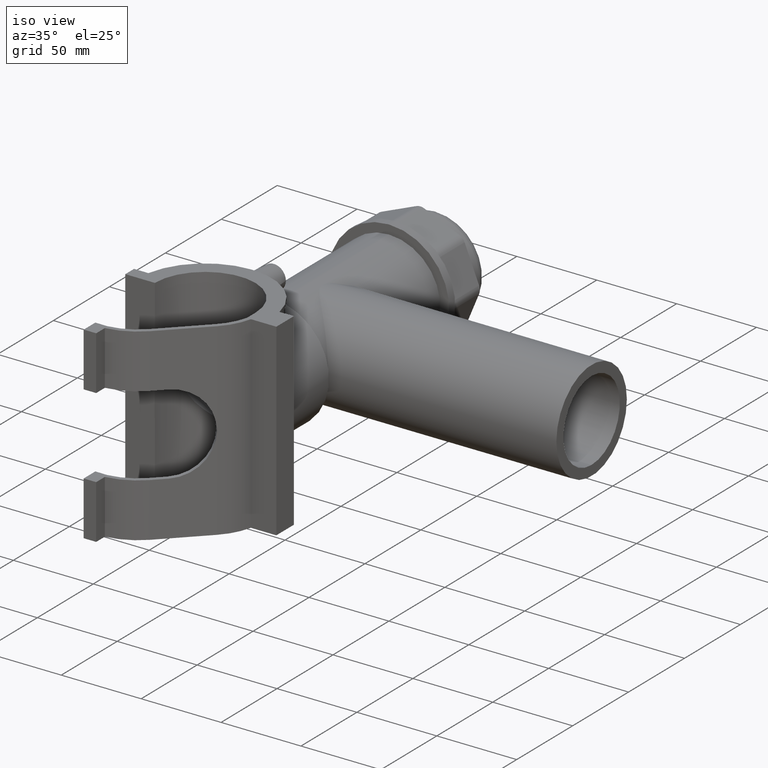
[diagram: clean part render]
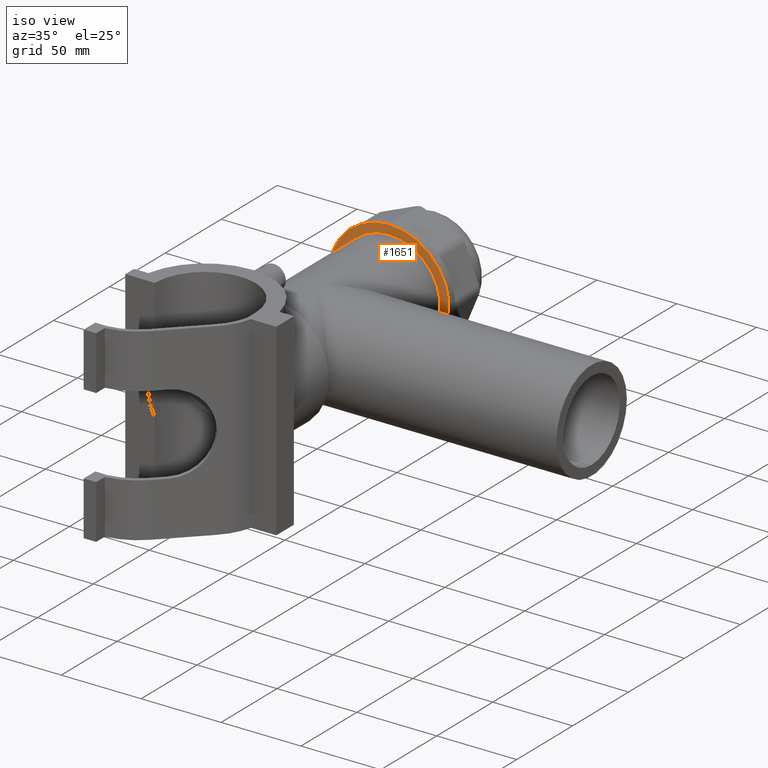
[diagram: same view with one face highlighted and labeled with its STEP entity id]
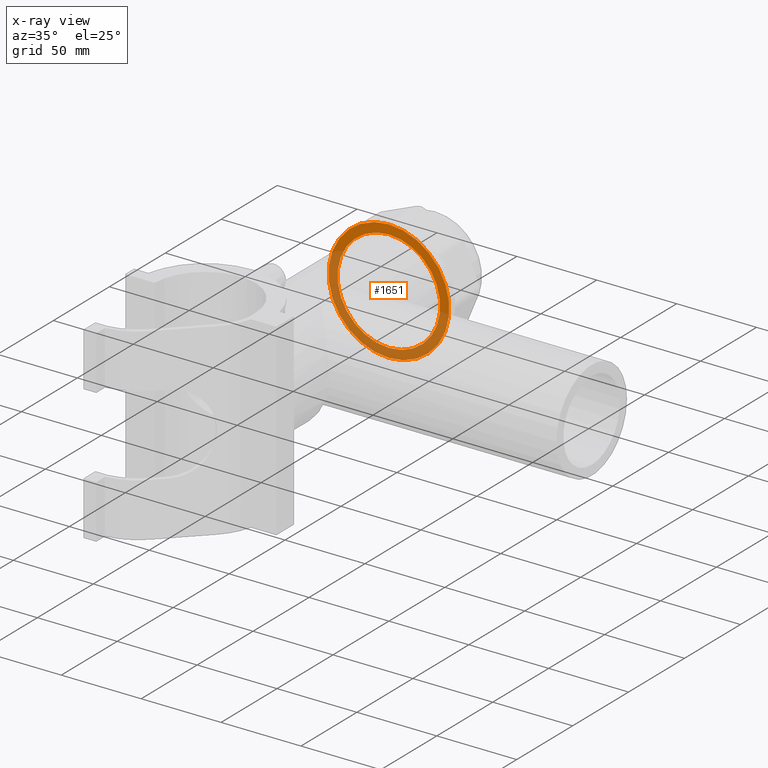
[diagram: x-ray of the same camera — body ghosted, the highlighted face saturated]
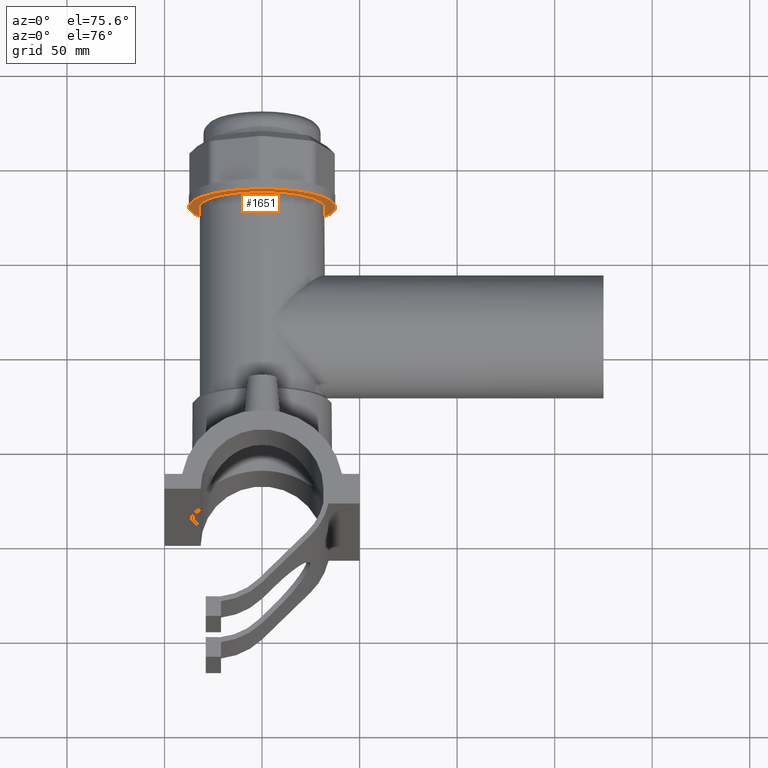
[diagram: same view with one face highlighted and labeled with its STEP entity id]
A machine part, iso view. The second image highlights one B-rep face of the part: STEP entity #1651.
The next image is the same camera in x-ray: the body ghosted, the highlighted face saturated — about 55% of this face is hidden behind the body in this view.
A second angle (auxiliary view) of the same face is appended — the face is thin or edge-on in the first view.
In plain terms, the highlighted planar face has unit normal (0, -1, -0).
Its self-contained STEP definition (entity closure, byte-faithful):
#322=FACE_BOUND('',#558,.T.);
#437=FACE_OUTER_BOUND('',#557,.T.);
#557=EDGE_LOOP('',(#1286));
#558=EDGE_LOOP('',(#1287));
#669=CIRCLE('',#1798,32.13);
#670=CIRCLE('',#1800,37.8);
#776=VERTEX_POINT('',#2930);
#777=VERTEX_POINT('',#2933);
#965=EDGE_CURVE('',#776,#776,#669,.T.);
#966=EDGE_CURVE('',#777,#777,#670,.T.);
#1286=ORIENTED_EDGE('',*,*,#966,.F.);
#1287=ORIENTED_EDGE('',*,*,#965,.T.);
#1566=PLANE('',#1799);
#1651=ADVANCED_FACE('',(#437,#322),#1566,.T.);
#1798=AXIS2_PLACEMENT_3D('',#2931,#2126,#2127);
#1799=AXIS2_PLACEMENT_3D('',#2932,#2128,#2129);
#1800=AXIS2_PLACEMENT_3D('',#2934,#2130,#2131);
#2126=DIRECTION('center_axis',(0.,1.,3.06161699786838E-16));
#2127=DIRECTION('ref_axis',(1.,0.,0.));
#2128=DIRECTION('center_axis',(0.,-1.,-3.06161699786838E-16));
#2129=DIRECTION('ref_axis',(0.,0.,-1.));
#2130=DIRECTION('center_axis',(0.,1.,3.06161699786838E-16));
#2131=DIRECTION('ref_axis',(1.,0.,0.));
#2930=CARTESIAN_POINT('',(0.,164.25,32.1300000000001));
#2931=CARTESIAN_POINT('Origin',(0.,164.25,4.06429656467028E-14));
#2932=CARTESIAN_POINT('Origin',(0.,164.25,37.8));
#2933=CARTESIAN_POINT('',(0.,164.25,37.8));
#2934=CARTESIAN_POINT('Origin',(0.,164.25,4.06429656467028E-14));